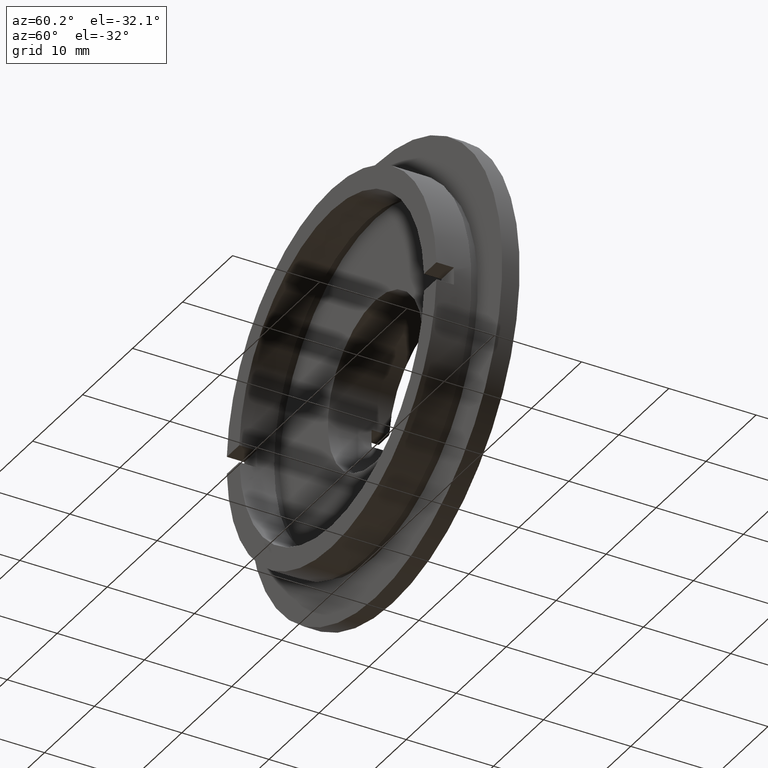
[diagram: clean part render]
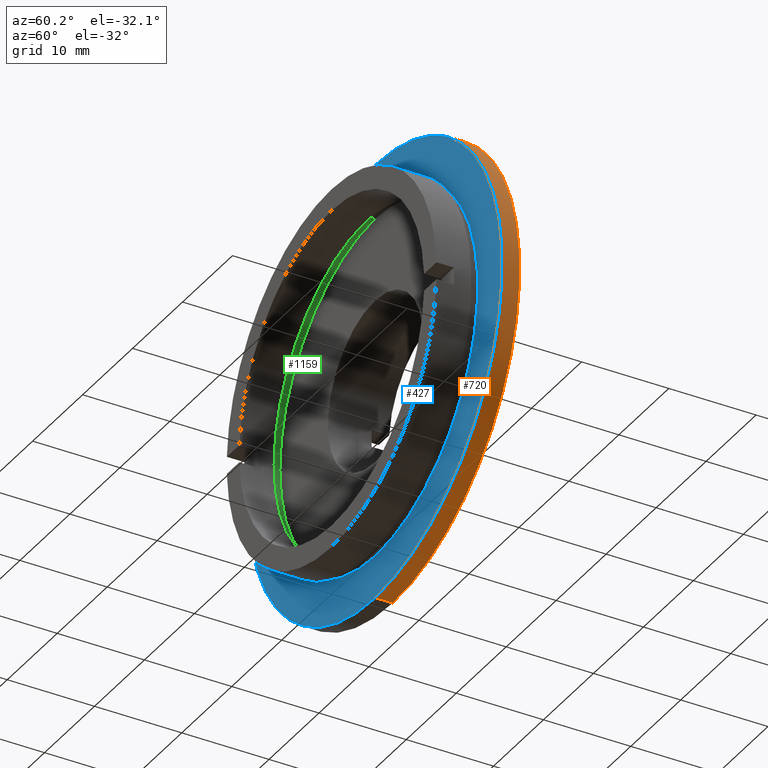
[diagram: same view with three faces highlighted in distinct colors, each labeled with its STEP entity id]
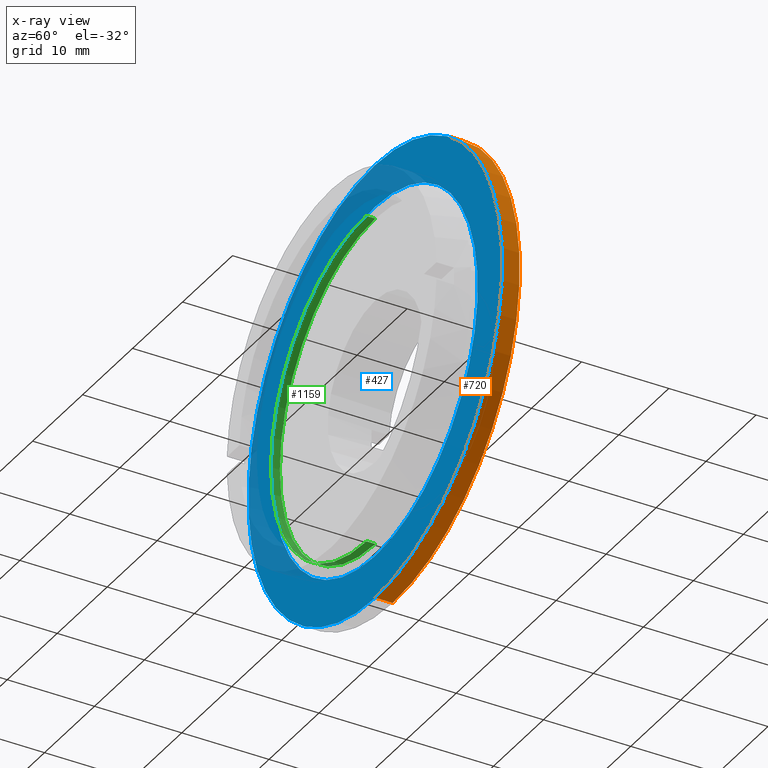
[diagram: x-ray of the same camera — body ghosted, the three highlighted faces saturated]
A machine part, auxiliary view with three faces highlighted in distinct colors.
The next image is the same camera in x-ray (body ghosted, the three faces saturated) — at least one of them is partly hidden behind the body in this view.
Their STEP definitions:

[orange] entity #720 — the highlighted cylindrical surface (partial cylindrical patch) has radius 25.4 mm, axis along (-0, 1, -0).
#21 = LINE ( 'NONE', #539, #265 ) ;
#50 = DIRECTION ( 'NONE',  ( 0.0000000000000000000, 0.0000000000000000000, 1.000000000000000000 ) ) ;
#61 = DIRECTION ( 'NONE',  ( -0.0000000000000000000, 1.000000000000000000, -0.0000000000000000000 ) ) ;
#63 = EDGE_CURVE ( 'NONE', #1066, #158, #21, .T. ) ;
#158 = VERTEX_POINT ( 'NONE', #486 ) ;
#161 = VECTOR ( 'NONE', #1197, 1000.000000000000000 ) ;
#191 = LINE ( 'NONE', #1290, #161 ) ;
#193 = ORIENTED_EDGE ( 'NONE', *, *, #1242, .F. ) ;
#212 = FACE_OUTER_BOUND ( 'NONE', #604, .T. ) ;
#263 = DIRECTION ( 'NONE',  ( 0.0000000000000000000, 0.0000000000000000000, 1.000000000000000000 ) ) ;
#265 = VECTOR ( 'NONE', #841, 1000.000000000000000 ) ;
#272 = EDGE_CURVE ( 'NONE', #1066, #656, #1210, .T. ) ;
#343 = CARTESIAN_POINT ( 'NONE',  ( 3.110602869834276500E-015, 5.000000000000000900, -25.39999999999999500 ) ) ;
#357 = VERTEX_POINT ( 'NONE', #936 ) ;
#378 = CARTESIAN_POINT ( 'NONE',  ( 0.0000000000000000000, 5.000000000000000900, 25.39999999999999500 ) ) ;
#414 = AXIS2_PLACEMENT_3D ( 'NONE', #1182, #1271, #263 ) ;
#486 = CARTESIAN_POINT ( 'NONE',  ( 0.0000000000000000000, 6.999999999999999100, 25.39999999999999500 ) ) ;
#539 = CARTESIAN_POINT ( 'NONE',  ( 0.0000000000000000000, 22.67749945107591400, 25.39999999999999500 ) ) ;
#578 = AXIS2_PLACEMENT_3D ( 'NONE', #719, #1265, #932 ) ;
#604 = EDGE_LOOP ( 'NONE', ( #1266, #1113, #193, #1203 ) ) ;
#656 = VERTEX_POINT ( 'NONE', #343 ) ;
#719 = CARTESIAN_POINT ( 'NONE',  ( 0.0000000000000000000, 5.000000000000000900, 0.0000000000000000000 ) ) ;
#720 = ADVANCED_FACE ( 'NONE', ( #212 ), #1014, .T. ) ;
#841 = DIRECTION ( 'NONE',  ( -0.0000000000000000000, 1.000000000000000000, -0.0000000000000000000 ) ) ;
#931 = CIRCLE ( 'NONE', #1030, 25.39999999999999500 ) ;
#932 = DIRECTION ( 'NONE',  ( 0.0000000000000000000, 0.0000000000000000000, 1.000000000000000000 ) ) ;
#936 = CARTESIAN_POINT ( 'NONE',  ( 3.110602869834276500E-015, 6.999999999999999100, -25.39999999999999500 ) ) ;
#1014 = CYLINDRICAL_SURFACE ( 'NONE', #414, 25.39999999999999500 ) ;
#1030 = AXIS2_PLACEMENT_3D ( 'NONE', #1123, #61, #50 ) ;
#1036 = EDGE_CURVE ( 'NONE', #656, #357, #191, .T. ) ;
#1066 = VERTEX_POINT ( 'NONE', #378 ) ;
#1113 = ORIENTED_EDGE ( 'NONE', *, *, #1036, .T. ) ;
#1123 = CARTESIAN_POINT ( 'NONE',  ( 0.0000000000000000000, 6.999999999999999100, 0.0000000000000000000 ) ) ;
#1182 = CARTESIAN_POINT ( 'NONE',  ( 0.0000000000000000000, 22.67749945107591400, 0.0000000000000000000 ) ) ;
#1197 = DIRECTION ( 'NONE',  ( -0.0000000000000000000, 1.000000000000000000, -0.0000000000000000000 ) ) ;
#1203 = ORIENTED_EDGE ( 'NONE', *, *, #63, .F. ) ;
#1210 = CIRCLE ( 'NONE', #578, 25.39999999999999500 ) ;
#1242 = EDGE_CURVE ( 'NONE', #158, #357, #931, .T. ) ;
#1265 = DIRECTION ( 'NONE',  ( -0.0000000000000000000, 1.000000000000000000, -0.0000000000000000000 ) ) ;
#1266 = ORIENTED_EDGE ( 'NONE', *, *, #272, .T. ) ;
#1271 = DIRECTION ( 'NONE',  ( -0.0000000000000000000, 1.000000000000000000, -0.0000000000000000000 ) ) ;
#1290 = CARTESIAN_POINT ( 'NONE',  ( 3.110602869834276500E-015, 22.67749945107591400, -25.39999999999999500 ) ) ;

[blue] entity #427 — the highlighted planar face has unit normal (0, -1, 0).
#11 = CARTESIAN_POINT ( 'NONE',  ( 0.0000000000000000000, 5.000000000000000900, 20.50000000000000000 ) ) ;
#22 = AXIS2_PLACEMENT_3D ( 'NONE', #871, #1289, #1249 ) ;
#54 = CIRCLE ( 'NONE', #448, 25.39999999999999500 ) ;
#57 = VERTEX_POINT ( 'NONE', #11 ) ;
#103 = ORIENTED_EDGE ( 'NONE', *, *, #579, .T. ) ;
#179 = AXIS2_PLACEMENT_3D ( 'NONE', #1093, #518, #1096 ) ;
#260 = ORIENTED_EDGE ( 'NONE', *, *, #877, .T. ) ;
#261 = PLANE ( 'NONE',  #179 ) ;
#272 = EDGE_CURVE ( 'NONE', #1066, #656, #1210, .T. ) ;
#318 = DIRECTION ( 'NONE',  ( -0.0000000000000000000, 1.000000000000000000, -0.0000000000000000000 ) ) ;
#343 = CARTESIAN_POINT ( 'NONE',  ( 3.110602869834276500E-015, 5.000000000000000900, -25.39999999999999500 ) ) ;
#359 = VERTEX_POINT ( 'NONE', #1321 ) ;
#378 = CARTESIAN_POINT ( 'NONE',  ( 0.0000000000000000000, 5.000000000000000900, 25.39999999999999500 ) ) ;
#397 = CIRCLE ( 'NONE', #22, 20.50000000000000000 ) ;
#408 = EDGE_LOOP ( 'NONE', ( #103, #260 ) ) ;
#412 = CARTESIAN_POINT ( 'NONE',  ( 0.0000000000000000000, 5.000000000000000900, 0.0000000000000000000 ) ) ;
#427 = ADVANCED_FACE ( 'NONE', ( #844, #864 ), #261, .T. ) ;
#448 = AXIS2_PLACEMENT_3D ( 'NONE', #598, #748, #1099 ) ;
#508 = ORIENTED_EDGE ( 'NONE', *, *, #272, .F. ) ;
#518 = DIRECTION ( 'NONE',  ( 0.0000000000000000000, -1.000000000000000000, 0.0000000000000000000 ) ) ;
#564 = CIRCLE ( 'NONE', #692, 20.50000000000000000 ) ;
#578 = AXIS2_PLACEMENT_3D ( 'NONE', #719, #1265, #932 ) ;
#579 = EDGE_CURVE ( 'NONE', #57, #359, #564, .T. ) ;
#598 = CARTESIAN_POINT ( 'NONE',  ( 0.0000000000000000000, 5.000000000000000900, 0.0000000000000000000 ) ) ;
#656 = VERTEX_POINT ( 'NONE', #343 ) ;
#692 = AXIS2_PLACEMENT_3D ( 'NONE', #412, #318, #923 ) ;
#719 = CARTESIAN_POINT ( 'NONE',  ( 0.0000000000000000000, 5.000000000000000900, 0.0000000000000000000 ) ) ;
#748 = DIRECTION ( 'NONE',  ( -0.0000000000000000000, 1.000000000000000000, -0.0000000000000000000 ) ) ;
#816 = EDGE_CURVE ( 'NONE', #656, #1066, #54, .T. ) ;
#844 = FACE_BOUND ( 'NONE', #408, .T. ) ;
#864 = FACE_OUTER_BOUND ( 'NONE', #1142, .T. ) ;
#871 = CARTESIAN_POINT ( 'NONE',  ( 0.0000000000000000000, 5.000000000000000900, 0.0000000000000000000 ) ) ;
#877 = EDGE_CURVE ( 'NONE', #359, #57, #397, .T. ) ;
#923 = DIRECTION ( 'NONE',  ( 0.0000000000000000000, 0.0000000000000000000, 1.000000000000000000 ) ) ;
#932 = DIRECTION ( 'NONE',  ( 0.0000000000000000000, 0.0000000000000000000, 1.000000000000000000 ) ) ;
#1045 = ORIENTED_EDGE ( 'NONE', *, *, #816, .F. ) ;
#1066 = VERTEX_POINT ( 'NONE', #378 ) ;
#1093 = CARTESIAN_POINT ( 'NONE',  ( -25.39999999999999500, 5.000000000000000000, 0.0000000000000000000 ) ) ;
#1096 = DIRECTION ( 'NONE',  ( 0.0000000000000000000, -0.0000000000000000000, -1.000000000000000000 ) ) ;
#1099 = DIRECTION ( 'NONE',  ( 0.0000000000000000000, 0.0000000000000000000, 1.000000000000000000 ) ) ;
#1142 = EDGE_LOOP ( 'NONE', ( #508, #1045 ) ) ;
#1210 = CIRCLE ( 'NONE', #578, 25.39999999999999500 ) ;
#1249 = DIRECTION ( 'NONE',  ( 0.0000000000000000000, 0.0000000000000000000, 1.000000000000000000 ) ) ;
#1265 = DIRECTION ( 'NONE',  ( -0.0000000000000000000, 1.000000000000000000, -0.0000000000000000000 ) ) ;
#1289 = DIRECTION ( 'NONE',  ( -0.0000000000000000000, 1.000000000000000000, -0.0000000000000000000 ) ) ;
#1321 = CARTESIAN_POINT ( 'NONE',  ( 2.510525938252074500E-015, 5.000000000000000900, -20.50000000000000000 ) ) ;

[green] entity #1159 — the highlighted cylindrical surface (partial cylindrical patch) has radius 19.1 mm, axis along (-0, 1, -0).
#62 = CIRCLE ( 'NONE', #98, 19.10000000000000100 ) ;
#95 = CIRCLE ( 'NONE', #128, 19.10000000000000100 ) ;
#98 = AXIS2_PLACEMENT_3D ( 'NONE', #991, #729, #665 ) ;
#116 = VERTEX_POINT ( 'NONE', #707 ) ;
#128 = AXIS2_PLACEMENT_3D ( 'NONE', #234, #222, #487 ) ;
#129 = CYLINDRICAL_SURFACE ( 'NONE', #341, 19.10000000000000100 ) ;
#186 = CARTESIAN_POINT ( 'NONE',  ( 0.0000000000000000000, 4.000000000000000000, 19.10000000000000100 ) ) ;
#222 = DIRECTION ( 'NONE',  ( -0.0000000000000000000, 1.000000000000000000, -0.0000000000000000000 ) ) ;
#234 = CARTESIAN_POINT ( 'NONE',  ( 0.0000000000000000000, 5.000000000000000900, 0.0000000000000000000 ) ) ;
#312 = EDGE_CURVE ( 'NONE', #934, #116, #1274, .T. ) ;
#341 = AXIS2_PLACEMENT_3D ( 'NONE', #636, #588, #715 ) ;
#447 = LINE ( 'NONE', #738, #1239 ) ;
#452 = FACE_OUTER_BOUND ( 'NONE', #1305, .T. ) ;
#487 = DIRECTION ( 'NONE',  ( 0.0000000000000000000, 0.0000000000000000000, 1.000000000000000000 ) ) ;
#537 = DIRECTION ( 'NONE',  ( -0.0000000000000000000, 1.000000000000000000, -0.0000000000000000000 ) ) ;
#588 = DIRECTION ( 'NONE',  ( -0.0000000000000000000, 1.000000000000000000, -0.0000000000000000000 ) ) ;
#618 = ORIENTED_EDGE ( 'NONE', *, *, #1320, .T. ) ;
#636 = CARTESIAN_POINT ( 'NONE',  ( 0.0000000000000000000, 22.67749945107591400, 0.0000000000000000000 ) ) ;
#665 = DIRECTION ( 'NONE',  ( 0.0000000000000000000, 0.0000000000000000000, 1.000000000000000000 ) ) ;
#689 = CARTESIAN_POINT ( 'NONE',  ( 2.339075386371445100E-015, 5.000000000000000900, -19.10000000000000100 ) ) ;
#701 = EDGE_CURVE ( 'NONE', #849, #934, #62, .T. ) ;
#707 = CARTESIAN_POINT ( 'NONE',  ( 0.0000000000000000000, 5.000000000000000900, 19.10000000000000100 ) ) ;
#715 = DIRECTION ( 'NONE',  ( 0.0000000000000000000, 0.0000000000000000000, 1.000000000000000000 ) ) ;
#729 = DIRECTION ( 'NONE',  ( -0.0000000000000000000, 1.000000000000000000, -0.0000000000000000000 ) ) ;
#738 = CARTESIAN_POINT ( 'NONE',  ( 2.339075386371445100E-015, 22.67749945107591400, -19.10000000000000100 ) ) ;
#751 = EDGE_CURVE ( 'NONE', #849, #817, #447, .T. ) ;
#817 = VERTEX_POINT ( 'NONE', #689 ) ;
#849 = VERTEX_POINT ( 'NONE', #963 ) ;
#892 = CARTESIAN_POINT ( 'NONE',  ( 0.0000000000000000000, 22.67749945107591400, 19.10000000000000100 ) ) ;
#914 = ORIENTED_EDGE ( 'NONE', *, *, #312, .F. ) ;
#934 = VERTEX_POINT ( 'NONE', #186 ) ;
#963 = CARTESIAN_POINT ( 'NONE',  ( 2.339075386371445100E-015, 4.000000000000000000, -19.10000000000000100 ) ) ;
#991 = CARTESIAN_POINT ( 'NONE',  ( 0.0000000000000000000, 4.000000000000000000, 0.0000000000000000000 ) ) ;
#1159 = ADVANCED_FACE ( 'NONE', ( #452 ), #129, .F. ) ;
#1198 = VECTOR ( 'NONE', #1332, 1000.000000000000000 ) ;
#1239 = VECTOR ( 'NONE', #537, 1000.000000000000000 ) ;
#1274 = LINE ( 'NONE', #892, #1198 ) ;
#1303 = ORIENTED_EDGE ( 'NONE', *, *, #751, .T. ) ;
#1305 = EDGE_LOOP ( 'NONE', ( #1325, #1303, #618, #914 ) ) ;
#1320 = EDGE_CURVE ( 'NONE', #817, #116, #95, .T. ) ;
#1325 = ORIENTED_EDGE ( 'NONE', *, *, #701, .F. ) ;
#1332 = DIRECTION ( 'NONE',  ( -0.0000000000000000000, 1.000000000000000000, -0.0000000000000000000 ) ) ;